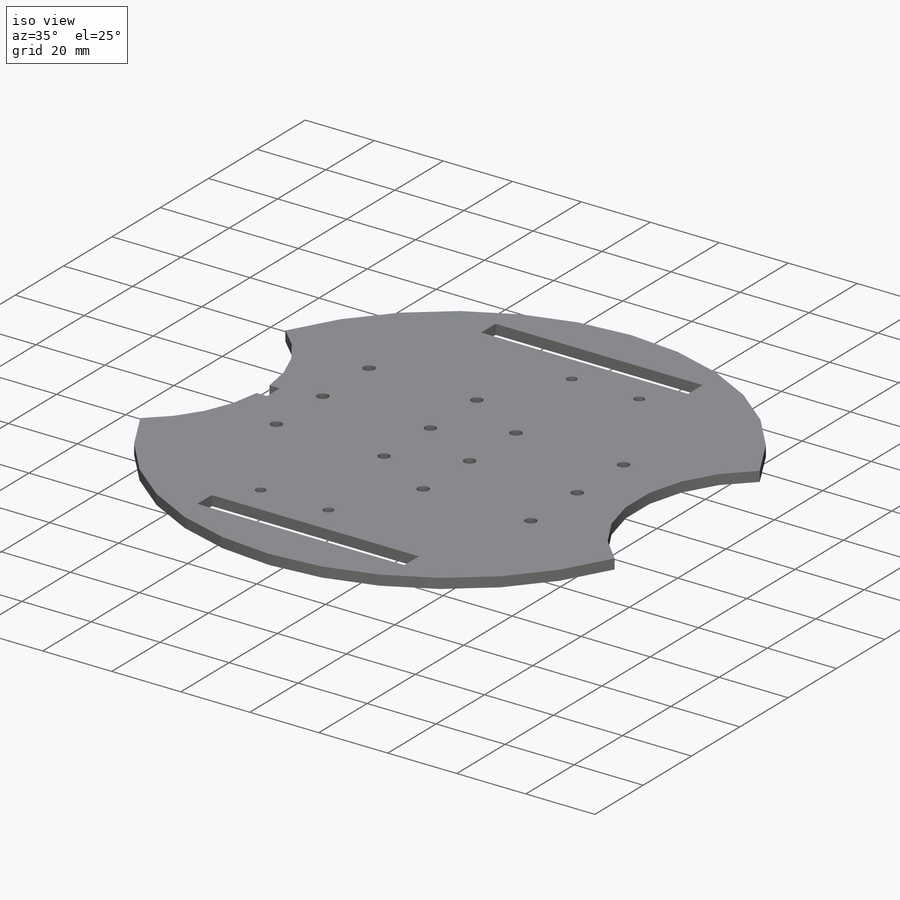
[diagram: iso view]
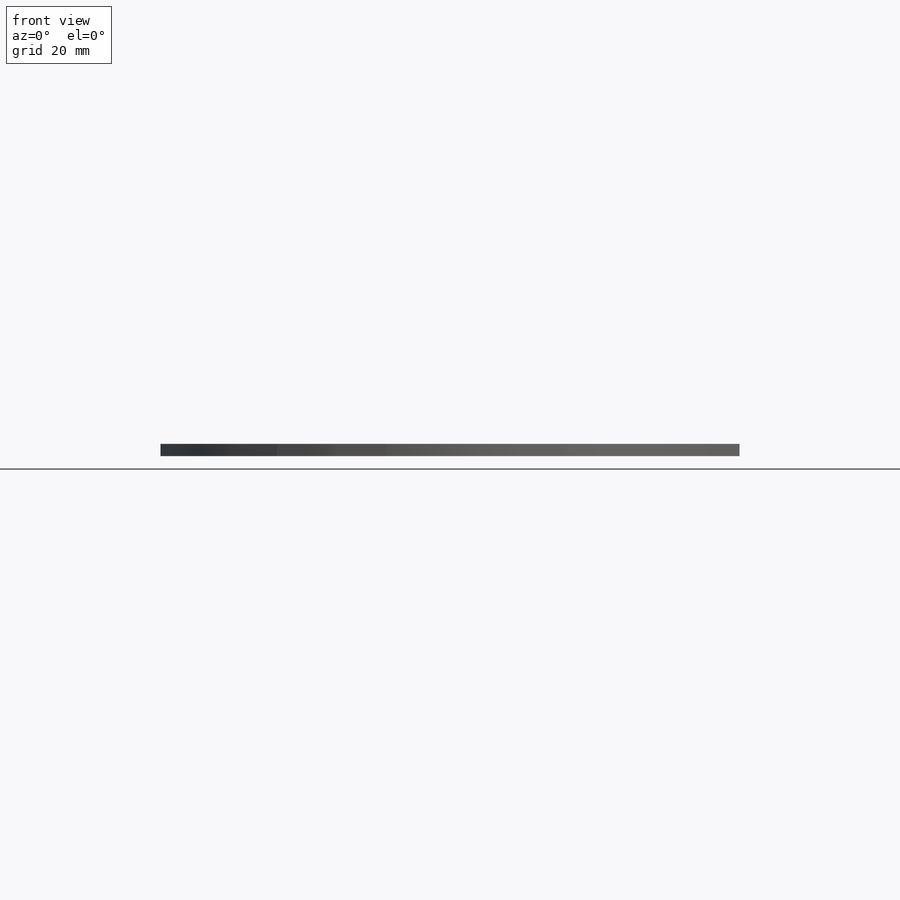
[diagram: front view]
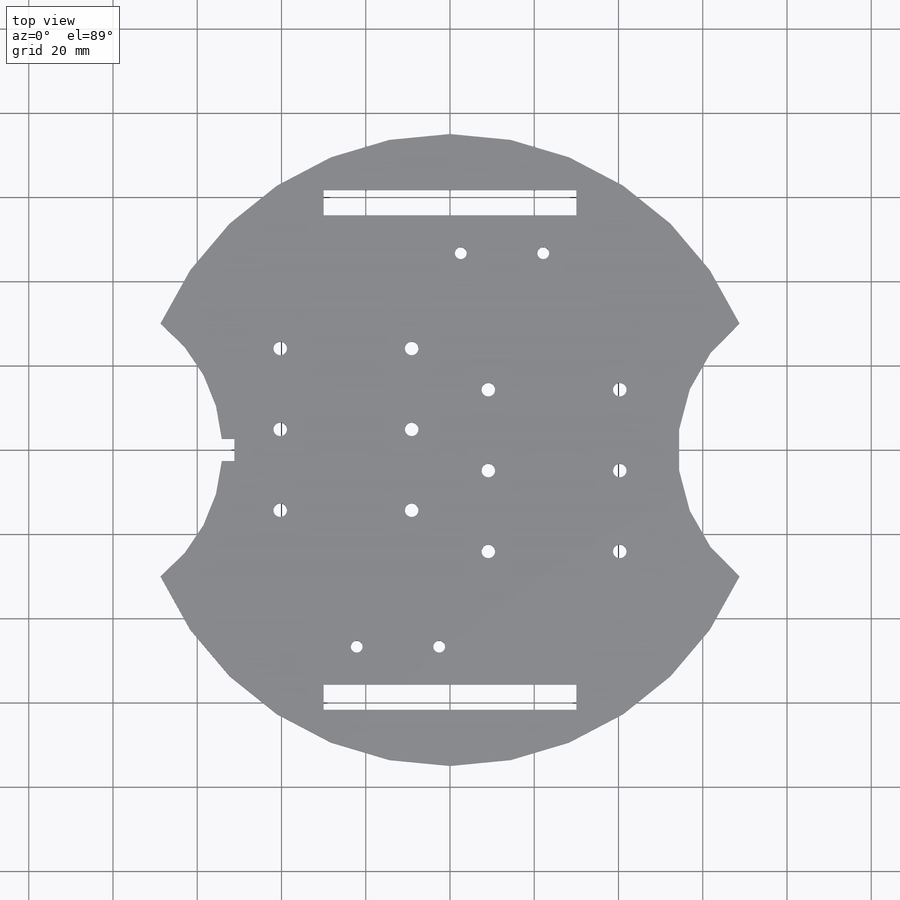
[diagram: top view]
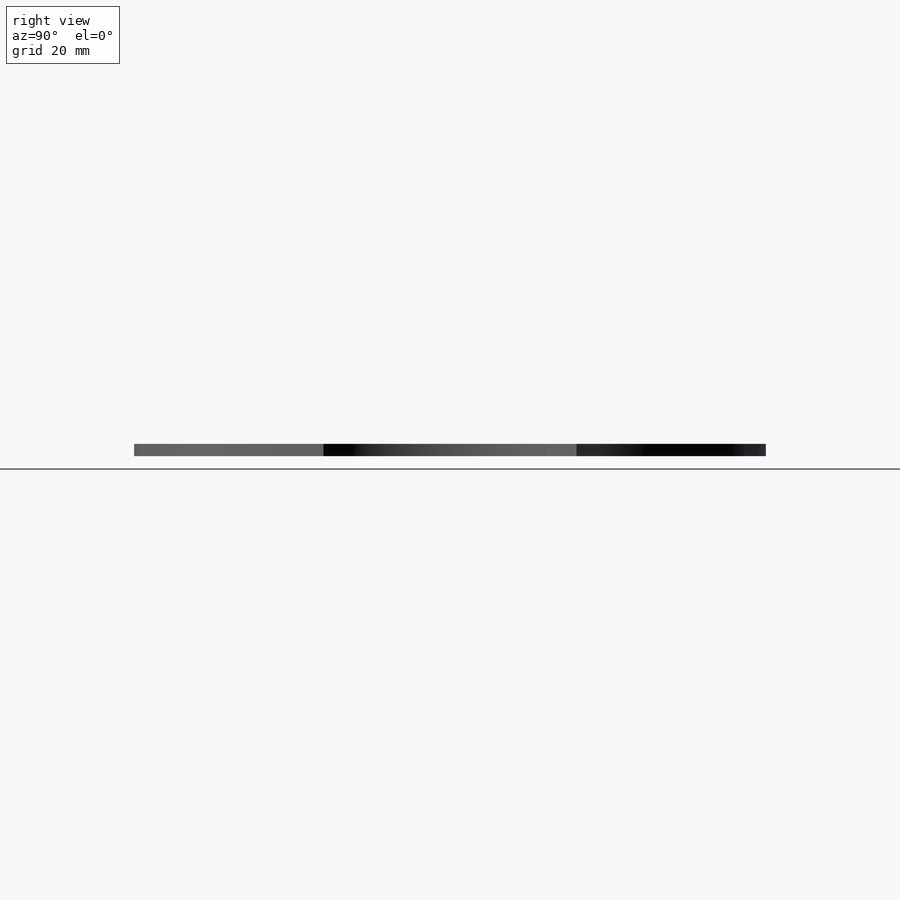
[diagram: right view]
SOLIDWORKS PART (.sldprt)
format: sldprt  version: not decoded by parser v0  size: 346,112 bytes
history: native  units: mm
features: sketch x3, cut_extrude x2, material x1, extrude x1 (+13 scaffold rows collapsed)
feature tree (20):
  scaffold x13  (default folders/planes/origin — collapsed)
  material  "Material <not specified>"
  sketch  "Sketch1"  dims[D1=150.0mm]
  extrude  "Boss-Extrude1"  Depth=2.9mm
  sketch  "Sketch2"  dims[c1.D10=76.2mm c1.D16=38.1mm c1.D17=150.0mm c1.D18=~5.983935mm c1.D19=~5.983935mm c1.D20=~5.983935mm c1.D21=3.2mm c1.D22=3.2mm c1.D24=3.2mm c1.D25=3.2mm c1.D26=2.8mm c1.D27=5.12mm c1.D28=2.8mm c1.D29=5.12mm c1.D30=2.8mm c1.D31=5.12mm c1.D32=2.8mm c1.D34=5.12mm c1.D35=2.8mm c1.D1=37.6mm c1.D2=51.2mm c1.D3=6.0mm c1.D4=20.0mm c1.D5=37.6mm c1.D6=51.2mm c1.D7=6.0mm c1.D8=20.0mm c2.D7=6.0mm c2.D8=20.0mm c2.D9=2.0mm c2.D10=6.0mm c2.D11=10.0mm c2.D12=24.7mm c2.D13=10.0mm c2.D14=24.7mm c3.D10=51.2mm c3.D9=12.0mm c4.D10=24.8mm c4.D9=24.7mm c5.D10=51.2mm c5.D15=~28.967156mm c6.D15=104.0deg c6.D16=~3.570569mm c6.D17=37.6mm c6.D18=19.2mm c6.D19=8.4mm c6.D20=31.2mm c6.D22=4.4mm c6.D24=8.4mm c6.D25=31.2mm c6.D28=6.0mm c6.D32=~4.661044mm c6.D33=6.0mm c6.D36=11.8mm c6.D37=60.0mm c6.D38=6.0mm c7.D19=3.0mm c7.D39=60.0mm c7.D40=6.0mm c7.D41=3.0mm c7.D42=8.4mm c7.D33=4.0mm c7.D28=4.0mm c7.D43=~48.041586mm c7.D17=3.0 c7.D23=3.0 c7.D16=6.0]
  cut_extrude  "Cut-Extrude1"  Depth=10mm
  sketch  "Sketch3"  dims[D1=3.0mm D2=5.3mm]
  cut_extrude  "Cut-Extrude2"  [1 undecoded]
decode coverage: 5 of 6 modeling features carry decoded parameters
note: ~ marks probable driven/reference dimensions
note: 1 parameter value undecoded
note: suppression state not decoded; provenance and decode notes live in map.json
